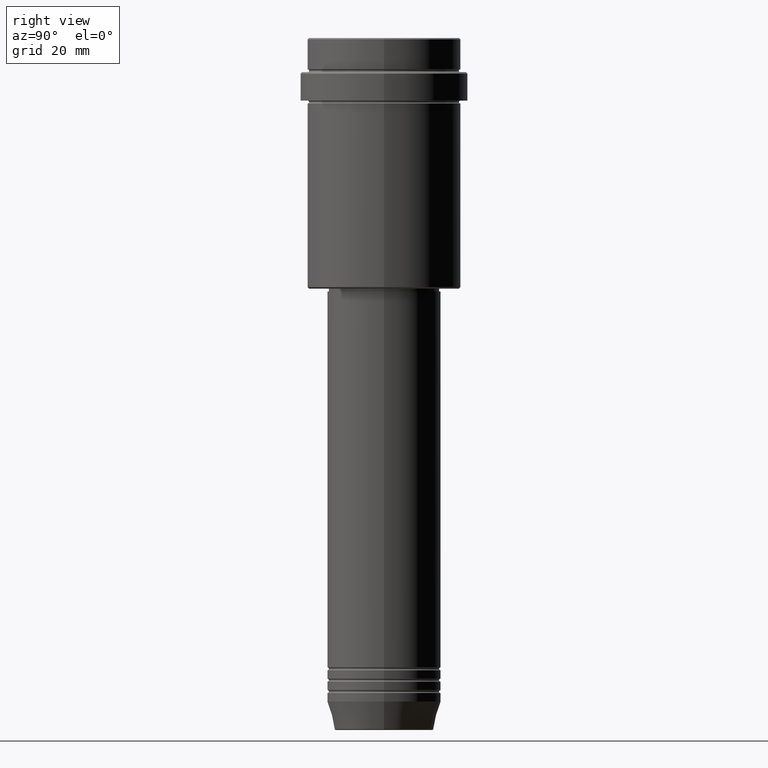
[diagram: clean part render]
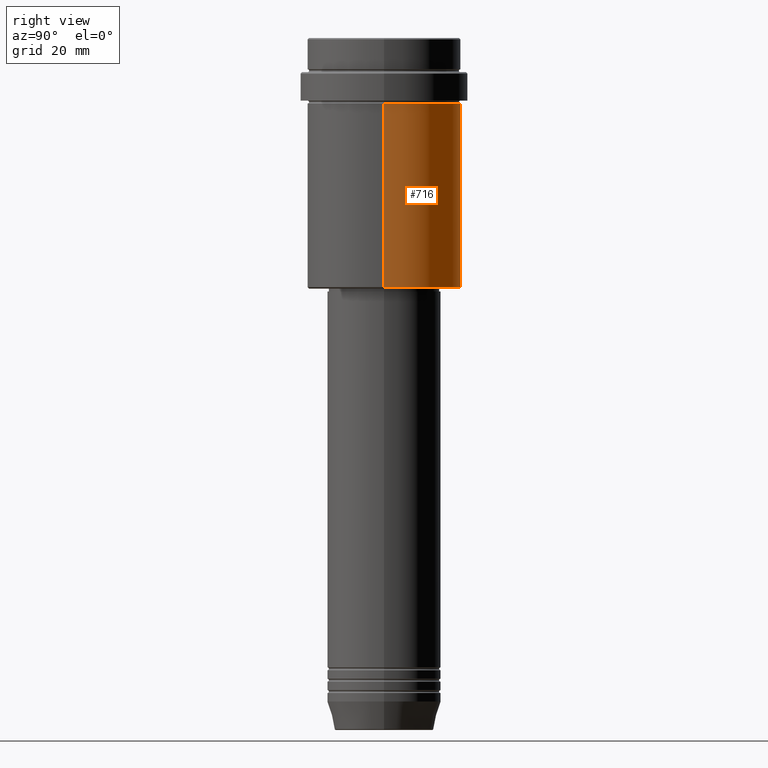
[diagram: same view with one face highlighted and labeled with its STEP entity id]
A machine part, right view. The second image highlights one B-rep face of the part: STEP entity #716.
In plain terms, the highlighted cylindrical surface (partial cylindrical patch) has radius 27 mm, axis along (-0, -0, 1).
Its self-contained STEP definition (entity closure, byte-faithful):
#11 = CARTESIAN_POINT ( 'NONE',  ( 27.00000000000000355, 0.000000000000000000, 0.000000000000000000 ) ) ;
#80 = CARTESIAN_POINT ( 'NONE',  ( 0.000000000000000000, 0.000000000000000000, -87.49999999999995737 ) ) ;
#106 = AXIS2_PLACEMENT_3D ( 'NONE', #858, #965, #739 ) ;
#115 = VERTEX_POINT ( 'NONE', #522 ) ;
#132 = CARTESIAN_POINT ( 'NONE',  ( 27.00000000000000355, 0.000000000000000000, -87.49999999999995737 ) ) ;
#202 = CIRCLE ( 'NONE', #1062, 27.00000000000000355 ) ;
#228 = FACE_OUTER_BOUND ( 'NONE', #645, .T. ) ;
#252 = VERTEX_POINT ( 'NONE', #132 ) ;
#284 = EDGE_CURVE ( 'NONE', #252, #115, #1205, .T. ) ;
#507 = EDGE_CURVE ( 'NONE', #115, #717, #792, .T. ) ;
#520 = DIRECTION ( 'NONE',  ( -0.000000000000000000, -0.000000000000000000, 1.000000000000000000 ) ) ;
#522 = CARTESIAN_POINT ( 'NONE',  ( 27.00000000000000355, 0.000000000000000000, -23.00000000000001421 ) ) ;
#559 = VECTOR ( 'NONE', #783, 1000.000000000000000 ) ;
#564 = DIRECTION ( 'NONE',  ( -0.000000000000000000, -0.000000000000000000, 1.000000000000000000 ) ) ;
#645 = EDGE_LOOP ( 'NONE', ( #674, #1190, #1090, #1028 ) ) ;
#648 = CARTESIAN_POINT ( 'NONE',  ( 0.000000000000000000, 0.000000000000000000, 0.000000000000000000 ) ) ;
#674 = ORIENTED_EDGE ( 'NONE', *, *, #939, .T. ) ;
#716 = ADVANCED_FACE ( 'NONE', ( #228 ), #1116, .T. ) ;
#717 = VERTEX_POINT ( 'NONE', #1004 ) ;
#739 = DIRECTION ( 'NONE',  ( 1.000000000000000000, 0.000000000000000000, 0.000000000000000000 ) ) ;
#783 = DIRECTION ( 'NONE',  ( -0.000000000000000000, -0.000000000000000000, 1.000000000000000000 ) ) ;
#792 = CIRCLE ( 'NONE', #106, 27.00000000000000355 ) ;
#846 = LINE ( 'NONE', #1396, #1274 ) ;
#858 = CARTESIAN_POINT ( 'NONE',  ( 0.000000000000000000, 0.000000000000000000, -23.00000000000001421 ) ) ;
#896 = EDGE_CURVE ( 'NONE', #1354, #717, #846, .T. ) ;
#939 = EDGE_CURVE ( 'NONE', #252, #1354, #202, .T. ) ;
#965 = DIRECTION ( 'NONE',  ( -0.000000000000000000, -0.000000000000000000, 1.000000000000000000 ) ) ;
#994 = DIRECTION ( 'NONE',  ( 1.000000000000000000, 0.000000000000000000, 0.000000000000000000 ) ) ;
#998 = AXIS2_PLACEMENT_3D ( 'NONE', #648, #564, #994 ) ;
#1004 = CARTESIAN_POINT ( 'NONE',  ( -27.00000000000000355, 3.306546357697854128E-15, -23.00000000000001421 ) ) ;
#1028 = ORIENTED_EDGE ( 'NONE', *, *, #284, .F. ) ;
#1043 = DIRECTION ( 'NONE',  ( -1.000000000000000000, 0.000000000000000000, 0.000000000000000000 ) ) ;
#1062 = AXIS2_PLACEMENT_3D ( 'NONE', #80, #520, #1043 ) ;
#1090 = ORIENTED_EDGE ( 'NONE', *, *, #507, .F. ) ;
#1116 = CYLINDRICAL_SURFACE ( 'NONE', #998, 27.00000000000000355 ) ;
#1190 = ORIENTED_EDGE ( 'NONE', *, *, #896, .T. ) ;
#1205 = LINE ( 'NONE', #11, #559 ) ;
#1266 = CARTESIAN_POINT ( 'NONE',  ( -27.00000000000000355, 3.306546357697854128E-15, -87.49999999999995737 ) ) ;
#1267 = DIRECTION ( 'NONE',  ( -0.000000000000000000, -0.000000000000000000, 1.000000000000000000 ) ) ;
#1274 = VECTOR ( 'NONE', #1267, 1000.000000000000000 ) ;
#1354 = VERTEX_POINT ( 'NONE', #1266 ) ;
#1396 = CARTESIAN_POINT ( 'NONE',  ( -27.00000000000000355, 3.306546357697854128E-15, 0.000000000000000000 ) ) ;